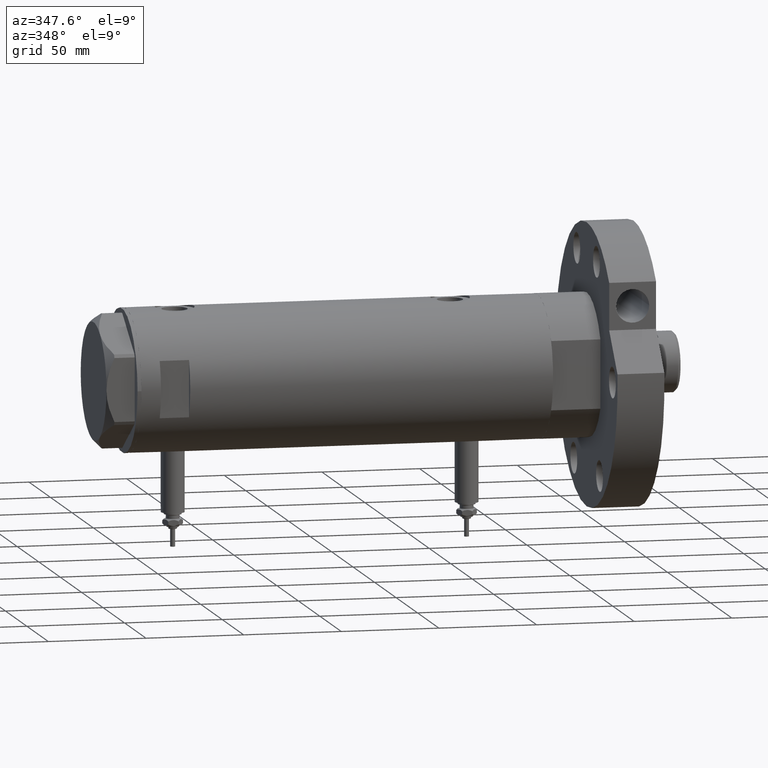
[diagram: clean part render]
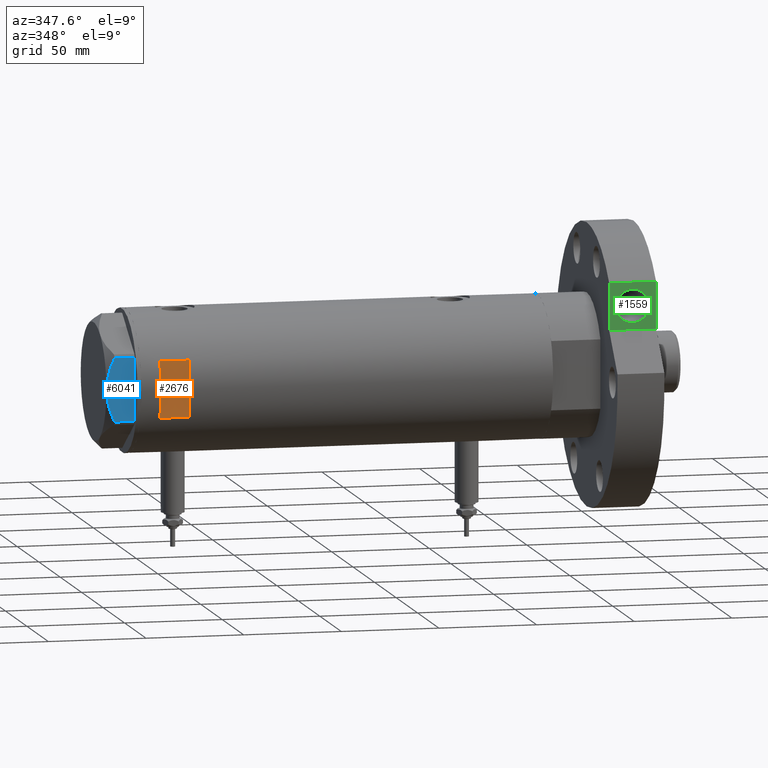
[diagram: same view with three faces highlighted in distinct colors, each labeled with its STEP entity id]
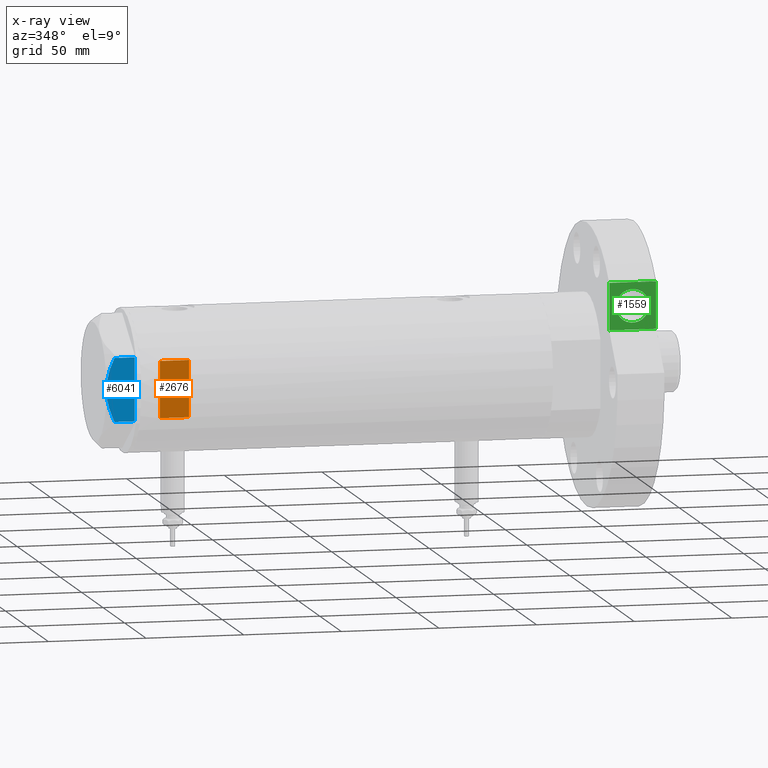
[diagram: x-ray of the same camera — body ghosted, the three highlighted faces saturated]
A machine part, auxiliary view with three faces highlighted in distinct colors.
The next image is the same camera in x-ray (body ghosted, the three faces saturated) — at least one of them is partly hidden behind the body in this view.
Their STEP definitions:

[orange] entity #2676 — the highlighted planar face has unit normal (-0, 1, 0).
#112 = EDGE_CURVE ( 'NONE', #3185, #4626, #3266, .T. ) ;
#414 = CARTESIAN_POINT ( 'NONE',  ( 14.49137674618942739, -33.50000000000000000, 95.40000000000001990 ) ) ;
#829 = FACE_OUTER_BOUND ( 'NONE', #3669, .T. ) ;
#873 = DIRECTION ( 'NONE',  ( 0.000000000000000000, 1.000000000000000000, 0.000000000000000000 ) ) ;
#1227 = ORIENTED_EDGE ( 'NONE', *, *, #112, .T. ) ;
#1658 = EDGE_CURVE ( 'NONE', #3185, #5252, #3154, .T. ) ;
#1912 = CARTESIAN_POINT ( 'NONE',  ( 14.49137674618942739, -33.50000000000000000, 80.40000000000003411 ) ) ;
#2015 = LINE ( 'NONE', #5407, #5861 ) ;
#2044 = VERTEX_POINT ( 'NONE', #1912 ) ;
#2082 = AXIS2_PLACEMENT_3D ( 'NONE', #3816, #873, #4234 ) ;
#2654 = VECTOR ( 'NONE', #5860, 1000.000000000000000 ) ;
#2676 = ADVANCED_FACE ( 'NONE', ( #829 ), #5002, .F. ) ;
#2703 = LINE ( 'NONE', #4491, #5240 ) ;
#2957 = CARTESIAN_POINT ( 'NONE',  ( -14.49137674618942562, -33.50000000000000000, -105.4000000000000057 ) ) ;
#3117 = CARTESIAN_POINT ( 'NONE',  ( -14.49137674618942739, -33.50000000000000000, 80.40000000000003411 ) ) ;
#3154 = LINE ( 'NONE', #3759, #5351 ) ;
#3185 = VERTEX_POINT ( 'NONE', #5413 ) ;
#3266 = LINE ( 'NONE', #2957, #2654 ) ;
#3597 = ORIENTED_EDGE ( 'NONE', *, *, #4625, .T. ) ;
#3669 = EDGE_LOOP ( 'NONE', ( #1227, #6837, #3597, #5783 ) ) ;
#3759 = CARTESIAN_POINT ( 'NONE',  ( -36.50000000000000000, -33.50000000000000000, 95.40000000000001990 ) ) ;
#3816 = CARTESIAN_POINT ( 'NONE',  ( -36.50000000000000000, -33.50000000000000000, 95.40000000000001990 ) ) ;
#3871 = DIRECTION ( 'NONE',  ( 1.000000000000000000, -0.000000000000000000, -0.000000000000000000 ) ) ;
#4234 = DIRECTION ( 'NONE',  ( 0.000000000000000000, -0.000000000000000000, 1.000000000000000000 ) ) ;
#4491 = CARTESIAN_POINT ( 'NONE',  ( -36.50000000000000000, -33.50000000000000000, 80.40000000000003411 ) ) ;
#4625 = EDGE_CURVE ( 'NONE', #2044, #5252, #2015, .T. ) ;
#4626 = VERTEX_POINT ( 'NONE', #3117 ) ;
#4801 = EDGE_CURVE ( 'NONE', #4626, #2044, #2703, .T. ) ;
#5002 = PLANE ( 'NONE',  #2082 ) ;
#5029 = DIRECTION ( 'NONE',  ( 1.000000000000000000, -0.000000000000000000, -0.000000000000000000 ) ) ;
#5240 = VECTOR ( 'NONE', #5029, 1000.000000000000000 ) ;
#5252 = VERTEX_POINT ( 'NONE', #414 ) ;
#5351 = VECTOR ( 'NONE', #3871, 1000.000000000000000 ) ;
#5407 = CARTESIAN_POINT ( 'NONE',  ( 14.49137674618942562, -33.50000000000000000, -105.4000000000000057 ) ) ;
#5413 = CARTESIAN_POINT ( 'NONE',  ( -14.49137674618942739, -33.50000000000000000, 95.40000000000001990 ) ) ;
#5783 = ORIENTED_EDGE ( 'NONE', *, *, #1658, .F. ) ;
#5860 = DIRECTION ( 'NONE',  ( -0.000000000000000000, -0.000000000000000000, -1.000000000000000000 ) ) ;
#5861 = VECTOR ( 'NONE', #6144, 1000.000000000000000 ) ;
#6144 = DIRECTION ( 'NONE',  ( 0.000000000000000000, 0.000000000000000000, 1.000000000000000000 ) ) ;
#6837 = ORIENTED_EDGE ( 'NONE', *, *, #4801, .T. ) ;

[blue] entity #6041 — the highlighted planar face has unit normal (-0, 1, 0).
#40 = CARTESIAN_POINT ( 'NONE',  ( -30.00000000000000000, -16.20050807568876294, 10.40518423703603901 ) ) ;
#181 = ORIENTED_EDGE ( 'NONE', *, *, #2810, .T. ) ;
#276 = FACE_OUTER_BOUND ( 'NONE', #5009, .T. ) ;
#517 = DIRECTION ( 'NONE',  ( 0.000000000000000000, 0.000000000000000000, 1.000000000000000000 ) ) ;
#796 = CARTESIAN_POINT ( 'NONE',  ( -30.00000000000000355, -1.418661615092686290, 14.47469700449902952 ) ) ;
#917 = CARTESIAN_POINT ( 'NONE',  ( -29.99999999999999645, -2.827567415490778835, 14.37523681947611109 ) ) ;
#959 = VERTEX_POINT ( 'NONE', #4038 ) ;
#1358 = AXIS2_PLACEMENT_3D ( 'NONE', #3690, #4950, #6027 ) ;
#2007 = DIRECTION ( 'NONE',  ( 0.000000000000000000, 0.000000000000000000, -1.000000000000000000 ) ) ;
#2034 = CARTESIAN_POINT ( 'NONE',  ( -29.99999999999999289, -15.56759648729806322, 10.70591879357992227 ) ) ;
#2060 = CARTESIAN_POINT ( 'NONE',  ( -30.00000000000000355, 10.99748736931232607, 12.55407623651775495 ) ) ;
#2093 = VECTOR ( 'NONE', #2007, 1000.000000000000000 ) ;
#2252 = LINE ( 'NONE', #6816, #5361 ) ;
#2415 = VERTEX_POINT ( 'NONE', #4832 ) ;
#2627 = PLANE ( 'NONE',  #1358 ) ;
#2789 = CARTESIAN_POINT ( 'NONE',  ( -30.00000000000000000, 16.20050807568875584, 10.40518423703603546 ) ) ;
#2810 = EDGE_CURVE ( 'NONE', #959, #7386, #2252, .T. ) ;
#3182 = CARTESIAN_POINT ( 'NONE',  ( -30.00000000000000000, -11.00230860792644982, 12.56933207488871673 ) ) ;
#3211 = CARTESIAN_POINT ( 'NONE',  ( -30.00000000000001421, 14.93680064777130312, 11.00564802993687508 ) ) ;
#3294 = CARTESIAN_POINT ( 'NONE',  ( -30.00000000000000000, 0.000000000000000000, 14.50000000000000000 ) ) ;
#3355 = CARTESIAN_POINT ( 'NONE',  ( -30.00000000000000000, 0.000000000000000000, 14.50000000000000000 ) ) ;
#3465 = EDGE_CURVE ( 'NONE', #2415, #959, #3567, .T. ) ;
#3492 = EDGE_CURVE ( 'NONE', #3971, #2415, #4939, .T. ) ;
#3567 = LINE ( 'NONE', #7317, #3909 ) ;
#3603 = CARTESIAN_POINT ( 'NONE',  ( -30.00000000000000000, -6.973771051792319042, 13.72753822183687511 ) ) ;
#3690 = CARTESIAN_POINT ( 'NONE',  ( -30.00000000000000000, 17.32050807568877460, 14.50000000000000000 ) ) ;
#3909 = VECTOR ( 'NONE', #5553, 1000.000000000000000 ) ;
#3971 = VERTEX_POINT ( 'NONE', #2789 ) ;
#4038 = CARTESIAN_POINT ( 'NONE',  ( -30.00000000000000000, -16.20050807568876294, 0.000000000000000000 ) ) ;
#4369 = VERTEX_POINT ( 'NONE', #3355 ) ;
#4384 = CARTESIAN_POINT ( 'NONE',  ( -30.00000000000000000, 9.655259153795977767, 12.99093232113973606 ) ) ;
#4832 = CARTESIAN_POINT ( 'NONE',  ( -30.00000000000000000, 16.20050807568875584, 0.000000000000000000 ) ) ;
#4935 = CARTESIAN_POINT ( 'NONE',  ( -29.99999999999999289, -13.63320717147166405, 11.55272916346384804 ) ) ;
#4939 = LINE ( 'NONE', #7242, #2093 ) ;
#4950 = DIRECTION ( 'NONE',  ( 1.000000000000000000, 0.000000000000000000, -0.000000000000000000 ) ) ;
#4958 = CARTESIAN_POINT ( 'NONE',  ( -30.00000000000000000, 11.66725319103952607, 12.31690447555093293 ) ) ;
#4966 = ORIENTED_EDGE ( 'NONE', *, *, #5617, .F. ) ;
#5009 = EDGE_LOOP ( 'NONE', ( #4966, #5384, #7244, #181, #5797 ) ) ;
#5048 = CARTESIAN_POINT ( 'NONE',  ( -30.00000000000000000, -16.20050807568876294, 10.40518423703603901 ) ) ;
#5146 = EDGE_CURVE ( 'NONE', #4369, #7386, #5659, .T. ) ;
#5361 = VECTOR ( 'NONE', #517, 1000.000000000000000 ) ;
#5384 = ORIENTED_EDGE ( 'NONE', *, *, #3492, .T. ) ;
#5461 = CARTESIAN_POINT ( 'NONE',  ( -29.99999999999999289, -14.92797448277034533, 10.99622797424084553 ) ) ;
#5536 = CARTESIAN_POINT ( 'NONE',  ( -30.00000000000000355, 13.64854889245356695, 11.56384586935411996 ) ) ;
#5553 = DIRECTION ( 'NONE',  ( 0.000000000000000000, -1.000000000000000000, 0.000000000000000000 ) ) ;
#5611 = CARTESIAN_POINT ( 'NONE',  ( -30.00000000000000000, 0.000000000000000000, 14.50000000000000000 ) ) ;
#5617 = EDGE_CURVE ( 'NONE', #3971, #4369, #6372, .T. ) ;
#5659 = B_SPLINE_CURVE_WITH_KNOTS ( 'NONE', 3,
 ( #3294, #6745, #796, #917, #7274, #6822, #3603, #5939, #3182, #6666, #4935, #5461, #2034, #5048 ),
 .UNSPECIFIED., .F., .F.,
 ( 4, 2, 2, 2, 2, 2, 4 ),
 ( 0.06183748343640969869, 0.06393495742991751885, 0.06603243142342535288, 0.07022737941044099319, 0.07442232739745664738, 0.07651980139096448141, 0.07861727538447230157 ),
 .UNSPECIFIED. ) ;
#5797 = ORIENTED_EDGE ( 'NONE', *, *, #5146, .F. ) ;
#5939 = CARTESIAN_POINT ( 'NONE',  ( -29.99999999999999645, -9.671229349009038856, 13.00645148086949554 ) ) ;
#6027 = DIRECTION ( 'NONE',  ( -0.000000000000000000, 0.000000000000000000, -1.000000000000000000 ) ) ;
#6041 = ADVANCED_FACE ( 'NONE', ( #276 ), #2627, .F. ) ;
#6113 = CARTESIAN_POINT ( 'NONE',  ( -30.00000000000000000, 16.20050807568875584, 10.40518423703603546 ) ) ;
#6372 = B_SPLINE_CURVE_WITH_KNOTS ( 'NONE', 3,
 ( #6113, #3211, #5536, #4958, #2060, #4384, #6732, #6614, #7337, #5611 ),
 .UNSPECIFIED., .F., .F.,
 ( 4, 2, 2, 2, 4 ),
 ( 0.04501738275285960267, 0.04922240792374713014, 0.05132492050919089388, 0.05342743309463465068, 0.06183748343640969869 ),
 .UNSPECIFIED. ) ;
#6614 = CARTESIAN_POINT ( 'NONE',  ( -30.00000000000000000, 5.593935073701701732, 14.09487059093540573 ) ) ;
#6666 = CARTESIAN_POINT ( 'NONE',  ( -29.99999999999999645, -12.97715359595204809, 11.81918444541430624 ) ) ;
#6732 = CARTESIAN_POINT ( 'NONE',  ( -30.00000000000000711, 8.981118657900116986, 13.19130745470829247 ) ) ;
#6745 = CARTESIAN_POINT ( 'NONE',  ( -30.00000000000000000, -0.7060353153488233557, 14.49999999999999822 ) ) ;
#6816 = CARTESIAN_POINT ( 'NONE',  ( -30.00000000000000000, -16.20050807568876294, 14.50000000000000000 ) ) ;
#6822 = CARTESIAN_POINT ( 'NONE',  ( -29.99999999999999289, -5.607365453019637513, 14.01139032121647965 ) ) ;
#7242 = CARTESIAN_POINT ( 'NONE',  ( -30.00000000000000000, 16.20050807568875584, 14.50000000000000000 ) ) ;
#7244 = ORIENTED_EDGE ( 'NONE', *, *, #3465, .T. ) ;
#7274 = CARTESIAN_POINT ( 'NONE',  ( -30.00000000000000000, -3.526431665117130798, 14.30125973663612626 ) ) ;
#7317 = CARTESIAN_POINT ( 'NONE',  ( -30.00000000000000000, 17.32050807568877460, 0.000000000000000000 ) ) ;
#7337 = CARTESIAN_POINT ( 'NONE',  ( -30.00000000000000711, 2.830925467268496476, 14.50000000000000533 ) ) ;
#7386 = VERTEX_POINT ( 'NONE', #40 ) ;

[green] entity #1559 — the highlighted planar face has unit normal (-0, 1, 0).
#254 = CARTESIAN_POINT ( 'NONE',  ( 25.21805468567554698, 52.48511851279233298, 0.000000000000000000 ) ) ;
#380 = EDGE_CURVE ( 'NONE', #3872, #6430, #6517, .T. ) ;
#553 = LINE ( 'NONE', #5305, #4036 ) ;
#585 = ORIENTED_EDGE ( 'NONE', *, *, #5907, .T. ) ;
#616 = CIRCLE ( 'NONE', #5028, 8.499999999999996447 ) ;
#620 = DIRECTION ( 'NONE',  ( 0.000000000000000000, -0.000000000000000000, -1.000000000000000000 ) ) ;
#701 = CARTESIAN_POINT ( 'NONE',  ( 49.28805468567554726, 52.48511851279232587, 0.000000000000000000 ) ) ;
#731 = FACE_OUTER_BOUND ( 'NONE', #1729, .T. ) ;
#1089 = LINE ( 'NONE', #5874, #3695 ) ;
#1369 = DIRECTION ( 'NONE',  ( 0.000000000000000000, 0.000000000000000000, -1.000000000000000000 ) ) ;
#1379 = CARTESIAN_POINT ( 'NONE',  ( 49.28805468567554726, 52.48511851279232587, 24.00000000000000000 ) ) ;
#1559 = ADVANCED_FACE ( 'NONE', ( #4675, #731 ), #2966, .F. ) ;
#1729 = EDGE_LOOP ( 'NONE', ( #7038, #3017, #5189, #2901 ) ) ;
#1865 = AXIS2_PLACEMENT_3D ( 'NONE', #4759, #3089, #1369 ) ;
#2041 = VERTEX_POINT ( 'NONE', #1379 ) ;
#2091 = CARTESIAN_POINT ( 'NONE',  ( 37.25305468567555067, 52.48511851279233298, 3.500000000000003109 ) ) ;
#2366 = CARTESIAN_POINT ( 'NONE',  ( 0.000000000000000000, 52.48511851279232587, 24.00000000000000000 ) ) ;
#2383 = VERTEX_POINT ( 'NONE', #701 ) ;
#2614 = CARTESIAN_POINT ( 'NONE',  ( 25.21805468567554698, 52.48511851279232587, 0.000000000000000000 ) ) ;
#2901 = ORIENTED_EDGE ( 'NONE', *, *, #380, .T. ) ;
#2966 = PLANE ( 'NONE',  #3159 ) ;
#2995 = EDGE_CURVE ( 'NONE', #6430, #2041, #4757, .T. ) ;
#3017 = ORIENTED_EDGE ( 'NONE', *, *, #7440, .F. ) ;
#3089 = DIRECTION ( 'NONE',  ( 0.000000000000000000, -1.000000000000000000, 0.000000000000000000 ) ) ;
#3159 = AXIS2_PLACEMENT_3D ( 'NONE', #4783, #3684, #620 ) ;
#3384 = DIRECTION ( 'NONE',  ( -0.000000000000000000, -0.000000000000000000, 1.000000000000000000 ) ) ;
#3684 = DIRECTION ( 'NONE',  ( 0.000000000000000000, -1.000000000000000000, 0.000000000000000000 ) ) ;
#3695 = VECTOR ( 'NONE', #3384, 1000.000000000000000 ) ;
#3727 = DIRECTION ( 'NONE',  ( 0.000000000000000000, -1.000000000000000000, 0.000000000000000000 ) ) ;
#3872 = VERTEX_POINT ( 'NONE', #254 ) ;
#3873 = CARTESIAN_POINT ( 'NONE',  ( 37.25305468567555067, 52.48511851279233298, 20.49999999999999645 ) ) ;
#4036 = VECTOR ( 'NONE', #5842, 1000.000000000000000 ) ;
#4114 = EDGE_CURVE ( 'NONE', #3872, #2383, #553, .T. ) ;
#4133 = EDGE_LOOP ( 'NONE', ( #585, #5633 ) ) ;
#4375 = DIRECTION ( 'NONE',  ( 0.000000000000000000, 0.000000000000000000, -1.000000000000000000 ) ) ;
#4675 = FACE_BOUND ( 'NONE', #4133, .T. ) ;
#4686 = DIRECTION ( 'NONE',  ( 1.000000000000000000, 0.000000000000000000, -0.000000000000000000 ) ) ;
#4757 = LINE ( 'NONE', #2366, #6479 ) ;
#4759 = CARTESIAN_POINT ( 'NONE',  ( 37.25305468567555067, 52.48511851279233298, 12.00000000000000000 ) ) ;
#4783 = CARTESIAN_POINT ( 'NONE',  ( 25.21805468567554698, 52.48511851279232587, 0.000000000000000000 ) ) ;
#4785 = VERTEX_POINT ( 'NONE', #3873 ) ;
#4838 = VECTOR ( 'NONE', #7089, 1000.000000000000000 ) ;
#5028 = AXIS2_PLACEMENT_3D ( 'NONE', #6145, #3727, #4375 ) ;
#5189 = ORIENTED_EDGE ( 'NONE', *, *, #4114, .F. ) ;
#5305 = CARTESIAN_POINT ( 'NONE',  ( 25.21805468567554698, 52.48511851279232587, 0.000000000000000000 ) ) ;
#5633 = ORIENTED_EDGE ( 'NONE', *, *, #7159, .T. ) ;
#5842 = DIRECTION ( 'NONE',  ( 1.000000000000000000, 0.000000000000000000, 0.000000000000000000 ) ) ;
#5874 = CARTESIAN_POINT ( 'NONE',  ( 49.28805468567554726, 52.48511851279232587, 0.000000000000000000 ) ) ;
#5907 = EDGE_CURVE ( 'NONE', #4785, #6001, #616, .T. ) ;
#6001 = VERTEX_POINT ( 'NONE', #2091 ) ;
#6145 = CARTESIAN_POINT ( 'NONE',  ( 37.25305468567555067, 52.48511851279233298, 12.00000000000000000 ) ) ;
#6430 = VERTEX_POINT ( 'NONE', #7153 ) ;
#6479 = VECTOR ( 'NONE', #4686, 1000.000000000000000 ) ;
#6517 = LINE ( 'NONE', #2614, #4838 ) ;
#6627 = CIRCLE ( 'NONE', #1865, 8.499999999999996447 ) ;
#7038 = ORIENTED_EDGE ( 'NONE', *, *, #2995, .T. ) ;
#7089 = DIRECTION ( 'NONE',  ( -0.000000000000000000, -0.000000000000000000, 1.000000000000000000 ) ) ;
#7153 = CARTESIAN_POINT ( 'NONE',  ( 25.21805468567554698, 52.48511851279232587, 24.00000000000000000 ) ) ;
#7159 = EDGE_CURVE ( 'NONE', #6001, #4785, #6627, .T. ) ;
#7440 = EDGE_CURVE ( 'NONE', #2383, #2041, #1089, .T. ) ;